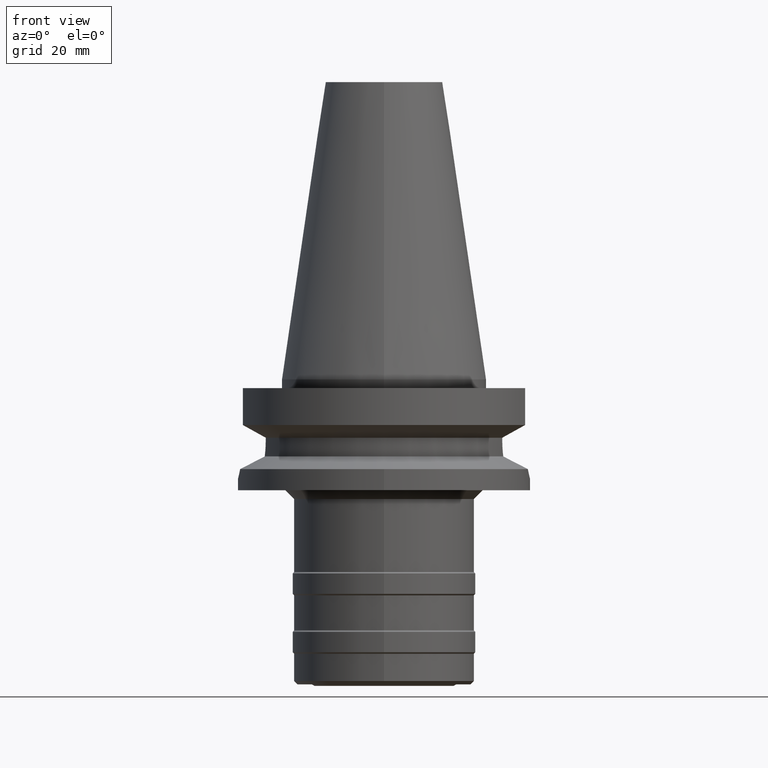
[diagram: clean part render]
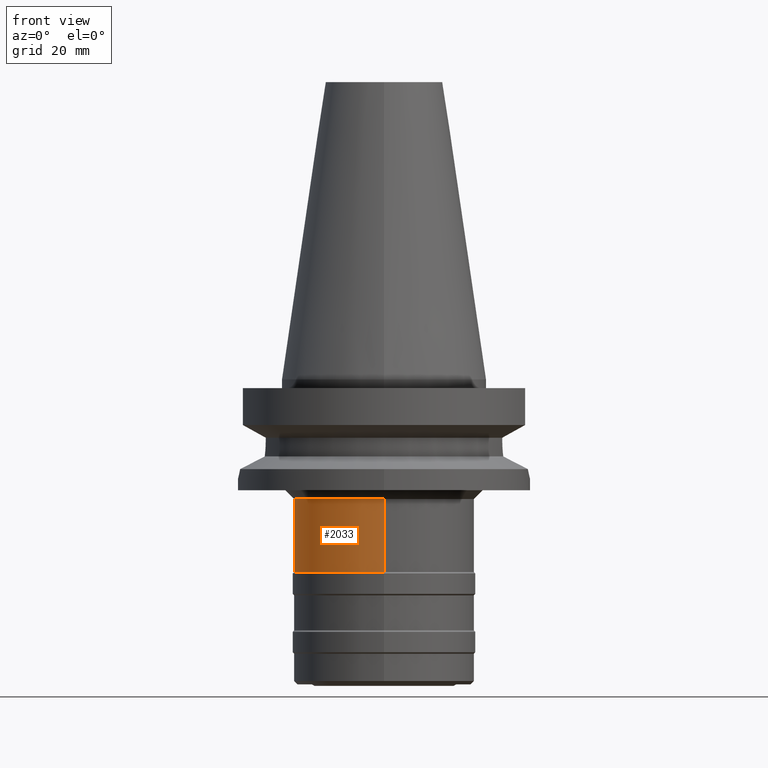
[diagram: same view with one face highlighted and labeled with its STEP entity id]
A machine part, front view. The second image highlights one B-rep face of the part: STEP entity #2033.
In plain terms, the highlighted cylindrical surface (partial cylindrical patch) has radius 31 mm, axis along (0, 0, -1).
Its self-contained STEP definition (entity closure, byte-faithful):
#571=CARTESIAN_POINT('',(0.E0,0.E0,-6.6E1));
#572=DIRECTION('',(0.E0,0.E0,1.E0));
#573=DIRECTION('',(0.E0,1.E0,0.E0));
#574=AXIS2_PLACEMENT_3D('',#571,#572,#573);
#594=DIRECTION('',(0.E0,0.E0,-1.E0));
#595=VECTOR('',#594,2.5E1);
#596=CARTESIAN_POINT('',(0.E0,-3.1E1,-4.1E1));
#597=LINE('',#596,#595);
#601=DIRECTION('',(0.E0,0.E0,-1.E0));
#602=VECTOR('',#601,2.5E1);
#603=CARTESIAN_POINT('',(0.E0,3.1E1,-4.1E1));
#604=LINE('',#603,#602);
#630=CARTESIAN_POINT('',(0.E0,0.E0,-4.1E1));
#631=DIRECTION('',(0.E0,0.E0,-1.E0));
#632=DIRECTION('',(0.E0,-1.E0,0.E0));
#633=AXIS2_PLACEMENT_3D('',#630,#631,#632);
#1368=CARTESIAN_POINT('',(0.E0,3.1E1,-6.6E1));
#1369=VERTEX_POINT('',#1368);
#1370=CARTESIAN_POINT('',(0.E0,-3.1E1,-6.6E1));
#1371=VERTEX_POINT('',#1370);
#1372=CARTESIAN_POINT('',(0.E0,3.1E1,-4.1E1));
#1373=VERTEX_POINT('',#1372);
#1374=CARTESIAN_POINT('',(0.E0,-3.1E1,-4.1E1));
#1375=VERTEX_POINT('',#1374);
#2019=CARTESIAN_POINT('',(0.E0,2.597965719711E-14,1.1214E2));
#2020=DIRECTION('',(0.E0,0.E0,-1.E0));
#2021=DIRECTION('',(0.E0,-1.E0,0.E0));
#2022=AXIS2_PLACEMENT_3D('',#2019,#2020,#2021);
#2023=CYLINDRICAL_SURFACE('',#2022,3.1E1);
#2025=ORIENTED_EDGE('',*,*,#2024,.F.);
#2027=ORIENTED_EDGE('',*,*,#2026,.F.);
#2029=ORIENTED_EDGE('',*,*,#2028,.T.);
#2030=ORIENTED_EDGE('',*,*,#2012,.F.);
#2031=EDGE_LOOP('',(#2025,#2027,#2029,#2030));
#2032=FACE_OUTER_BOUND('',#2031,.F.);
#575=CIRCLE('',#574,3.1E1);
#634=CIRCLE('',#633,3.1E1);
#2012=EDGE_CURVE('',#1369,#1371,#575,.T.);
#2024=EDGE_CURVE('',#1373,#1369,#604,.T.);
#2026=EDGE_CURVE('',#1375,#1373,#634,.T.);
#2028=EDGE_CURVE('',#1375,#1371,#597,.T.);
#2033=ADVANCED_FACE('',(#2032),#2023,.T.);